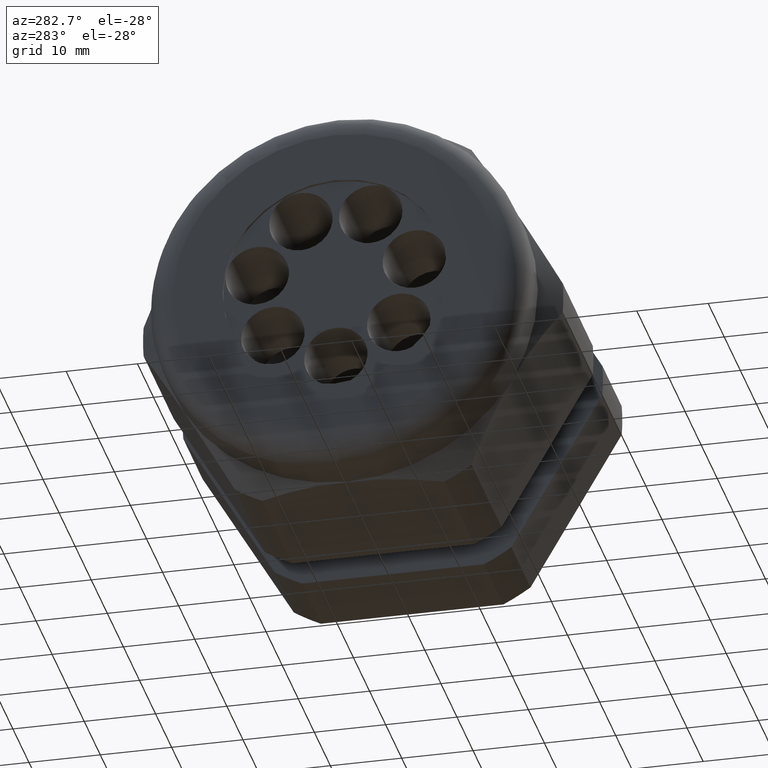
[diagram: clean part render]
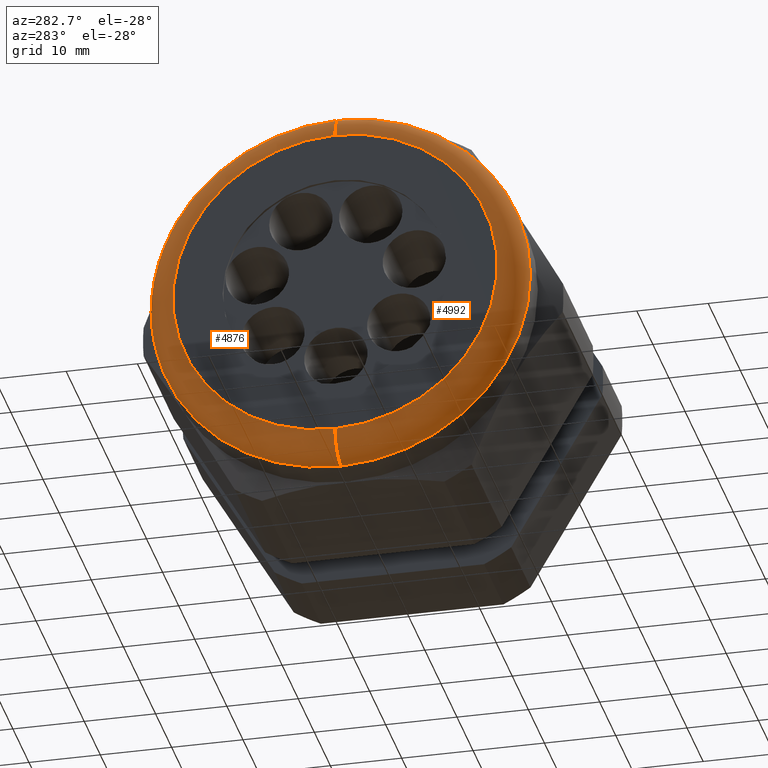
[diagram: same view with one multi-face feature highlighted, each face labeled with its STEP entity id]
A machine part, auxiliary view. The highlighted faces form ONE feature: a constant-radius fillet chain: 2 tangent blend faces with common blend radius 3.81 mm. The faces share edges in the B-rep.
Their STEP definitions:
[1] entity #4992 (Torus):
#32 = EDGE_CURVE ( 'NONE', #4864, #4863, #974, .T. ) ;
#728 = EDGE_CURVE ( 'NONE', #4864, #4869, #2210, .T. ) ;
#745 = EDGE_CURVE ( 'NONE', #4867, #4863, #2244, .T. ) ;
#970 = DIRECTION ( 'NONE',  ( 0.0000000000000000000, 0.0000000000000000000, -1.000000000000000000 ) ) ;
#971 = DIRECTION ( 'NONE',  ( 0.0000000000000000000, -1.000000000000000000, 0.0000000000000000000 ) ) ;
#972 = CARTESIAN_POINT ( 'NONE',  ( -2.049999999999999400, 0.0000000000000000000, 0.8949999999999999100 ) ) ;
#973 = AXIS2_PLACEMENT_3D ( 'NONE', #972, #971, #970 ) ;
#974 = CIRCLE ( 'NONE', #973, 0.1500000000000000500 ) ;
#2206 = DIRECTION ( 'NONE',  ( 0.0000000000000000000, 0.0000000000000000000, 1.000000000000000000 ) ) ;
#2207 = DIRECTION ( 'NONE',  ( 1.000000000000000000, 0.0000000000000000000, 0.0000000000000000000 ) ) ;
#2208 = CARTESIAN_POINT ( 'NONE',  ( -2.049999999999999400, 0.0000000000000000000, 0.0000000000000000000 ) ) ;
#2209 = AXIS2_PLACEMENT_3D ( 'NONE', #2208, #2207, #2206 ) ;
#2210 = CIRCLE ( 'NONE', #2209, 1.044999999999999900 ) ;
#2240 = DIRECTION ( 'NONE',  ( 0.0000000000000000000, 0.0000000000000000000, 1.000000000000000000 ) ) ;
#2241 = DIRECTION ( 'NONE',  ( -1.000000000000000000, 0.0000000000000000000, 0.0000000000000000000 ) ) ;
#2242 = CARTESIAN_POINT ( 'NONE',  ( -2.199999999999999300, 0.0000000000000000000, 0.0000000000000000000 ) ) ;
#2243 = AXIS2_PLACEMENT_3D ( 'NONE', #2242, #2241, #2240 ) ;
#2244 = CIRCLE ( 'NONE', #2243, 0.8949999999999999100 ) ;
#3073 = CARTESIAN_POINT ( 'NONE',  ( -2.049999999999999400, 0.0000000000000000000, -1.044999999999999900 ) ) ;
#3075 = CARTESIAN_POINT ( 'NONE',  ( -2.199999999999999300, 1.187907395172932400E-016, -0.8949999999999999100 ) ) ;
#3081 = CARTESIAN_POINT ( 'NONE',  ( -2.049999999999999400, 1.279755905108984100E-016, 1.044999999999999900 ) ) ;
#3082 = CARTESIAN_POINT ( 'NONE',  ( -2.199999999999999300, 0.0000000000000000000, 0.8949999999999999100 ) ) ;
#3083 = DIRECTION ( 'NONE',  ( 0.0000000000000000000, -1.224646799147352500E-016, 1.000000000000000000 ) ) ;
#3084 = DIRECTION ( 'NONE',  ( 0.0000000000000000000, 1.000000000000000000, 1.224646799147353200E-016 ) ) ;
#3085 = CARTESIAN_POINT ( 'NONE',  ( -2.049999999999999400, 1.096058885236880900E-016, -0.8949999999999999100 ) ) ;
#3086 = AXIS2_PLACEMENT_3D ( 'NONE', #3085, #3084, #3083 ) ;
#3087 = CIRCLE ( 'NONE', #3086, 0.1500000000000000500 ) ;
#3245 = DIRECTION ( 'NONE',  ( 0.0000000000000000000, 0.0000000000000000000, 1.000000000000000000 ) ) ;
#3246 = DIRECTION ( 'NONE',  ( -1.000000000000000000, 0.0000000000000000000, 0.0000000000000000000 ) ) ;
#3247 = AXIS2_PLACEMENT_3D ( 'NONE', #3255, #3246, #3245 ) ;
#3248 = TOROIDAL_SURFACE ( 'NONE', #3247, 0.8949999999999999100, 0.1499999999999999900 ) ;
#3249 = FACE_OUTER_BOUND ( 'NONE', #4980, .T. ) ;
#3255 = CARTESIAN_POINT ( 'NONE',  ( -2.049999999999999400, 0.0000000000000000000, 0.0000000000000000000 ) ) ;
#4860 = EDGE_CURVE ( 'NONE', #4869, #4867, #3087, .T. ) ;
#4863 = VERTEX_POINT ( 'NONE', #3082 ) ;
#4864 = VERTEX_POINT ( 'NONE', #3081 ) ;
#4867 = VERTEX_POINT ( 'NONE', #3075 ) ;
#4869 = VERTEX_POINT ( 'NONE', #3073 ) ;
#4980 = EDGE_LOOP ( 'NONE', ( #4981, #4982, #4985, #4987 ) ) ;
#4981 = ORIENTED_EDGE ( 'NONE', *, *, #4860, .F. ) ;
#4982 = ORIENTED_EDGE ( 'NONE', *, *, #728, .F. ) ;
#4985 = ORIENTED_EDGE ( 'NONE', *, *, #32, .T. ) ;
#4987 = ORIENTED_EDGE ( 'NONE', *, *, #745, .F. ) ;
#4992 = ADVANCED_FACE ( 'NONE', ( #3249 ), #3248, .T. ) ;
[2] entity #4876 (Torus):
#30 = ORIENTED_EDGE ( 'NONE', *, *, #32, .F. ) ;
#32 = EDGE_CURVE ( 'NONE', #4864, #4863, #974, .T. ) ;
#970 = DIRECTION ( 'NONE',  ( 0.0000000000000000000, 0.0000000000000000000, -1.000000000000000000 ) ) ;
#971 = DIRECTION ( 'NONE',  ( 0.0000000000000000000, -1.000000000000000000, 0.0000000000000000000 ) ) ;
#972 = CARTESIAN_POINT ( 'NONE',  ( -2.049999999999999400, 0.0000000000000000000, 0.8949999999999999100 ) ) ;
#973 = AXIS2_PLACEMENT_3D ( 'NONE', #972, #971, #970 ) ;
#974 = CIRCLE ( 'NONE', #973, 0.1500000000000000500 ) ;
#3065 = AXIS2_PLACEMENT_3D ( 'NONE', #3130, #3129, #3128 ) ;
#3066 = CIRCLE ( 'NONE', #3065, 1.044999999999999900 ) ;
#3067 = FACE_OUTER_BOUND ( 'NONE', #4840, .T. ) ;
#3073 = CARTESIAN_POINT ( 'NONE',  ( -2.049999999999999400, 0.0000000000000000000, -1.044999999999999900 ) ) ;
#3075 = CARTESIAN_POINT ( 'NONE',  ( -2.199999999999999300, 1.187907395172932400E-016, -0.8949999999999999100 ) ) ;
#3076 = DIRECTION ( 'NONE',  ( 0.0000000000000000000, 0.0000000000000000000, 1.000000000000000000 ) ) ;
#3077 = DIRECTION ( 'NONE',  ( -1.000000000000000000, 0.0000000000000000000, 0.0000000000000000000 ) ) ;
#3078 = CARTESIAN_POINT ( 'NONE',  ( -2.199999999999999300, 0.0000000000000000000, 0.0000000000000000000 ) ) ;
#3079 = AXIS2_PLACEMENT_3D ( 'NONE', #3078, #3077, #3076 ) ;
#3080 = CIRCLE ( 'NONE', #3079, 0.8949999999999999100 ) ;
#3081 = CARTESIAN_POINT ( 'NONE',  ( -2.049999999999999400, 1.279755905108984100E-016, 1.044999999999999900 ) ) ;
#3082 = CARTESIAN_POINT ( 'NONE',  ( -2.199999999999999300, 0.0000000000000000000, 0.8949999999999999100 ) ) ;
#3083 = DIRECTION ( 'NONE',  ( 0.0000000000000000000, -1.224646799147352500E-016, 1.000000000000000000 ) ) ;
#3084 = DIRECTION ( 'NONE',  ( 0.0000000000000000000, 1.000000000000000000, 1.224646799147353200E-016 ) ) ;
#3085 = CARTESIAN_POINT ( 'NONE',  ( -2.049999999999999400, 1.096058885236880900E-016, -0.8949999999999999100 ) ) ;
#3086 = AXIS2_PLACEMENT_3D ( 'NONE', #3085, #3084, #3083 ) ;
#3087 = CIRCLE ( 'NONE', #3086, 0.1500000000000000500 ) ;
#3123 = DIRECTION ( 'NONE',  ( 0.0000000000000000000, 0.0000000000000000000, 1.000000000000000000 ) ) ;
#3124 = DIRECTION ( 'NONE',  ( -1.000000000000000000, 0.0000000000000000000, 0.0000000000000000000 ) ) ;
#3125 = AXIS2_PLACEMENT_3D ( 'NONE', #3127, #3124, #3123 ) ;
#3126 = TOROIDAL_SURFACE ( 'NONE', #3125, 0.8949999999999999100, 0.1499999999999999900 ) ;
#3127 = CARTESIAN_POINT ( 'NONE',  ( -2.049999999999999400, 0.0000000000000000000, 0.0000000000000000000 ) ) ;
#3128 = DIRECTION ( 'NONE',  ( 0.0000000000000000000, 0.0000000000000000000, 1.000000000000000000 ) ) ;
#3129 = DIRECTION ( 'NONE',  ( 1.000000000000000000, 0.0000000000000000000, 0.0000000000000000000 ) ) ;
#3130 = CARTESIAN_POINT ( 'NONE',  ( -2.049999999999999400, 0.0000000000000000000, 0.0000000000000000000 ) ) ;
#4840 = EDGE_LOOP ( 'NONE', ( #4872, #4862, #4861, #30 ) ) ;
#4860 = EDGE_CURVE ( 'NONE', #4869, #4867, #3087, .T. ) ;
#4861 = ORIENTED_EDGE ( 'NONE', *, *, #4866, .F. ) ;
#4862 = ORIENTED_EDGE ( 'NONE', *, *, #4860, .T. ) ;
#4863 = VERTEX_POINT ( 'NONE', #3082 ) ;
#4864 = VERTEX_POINT ( 'NONE', #3081 ) ;
#4866 = EDGE_CURVE ( 'NONE', #4863, #4867, #3080, .T. ) ;
#4867 = VERTEX_POINT ( 'NONE', #3075 ) ;
#4869 = VERTEX_POINT ( 'NONE', #3073 ) ;
#4872 = ORIENTED_EDGE ( 'NONE', *, *, #4874, .F. ) ;
#4874 = EDGE_CURVE ( 'NONE', #4869, #4864, #3066, .T. ) ;
#4876 = ADVANCED_FACE ( 'NONE', ( #3067 ), #3126, .T. ) ;